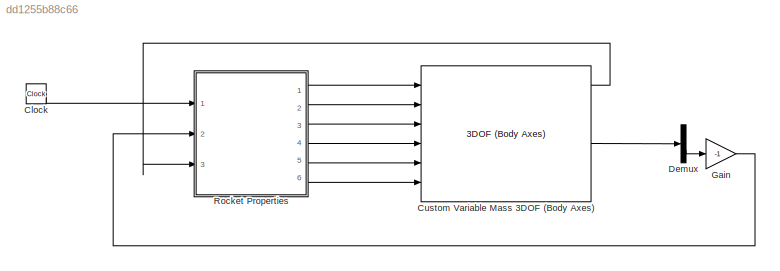
MODEL slx_dd1255b88c66
KIND model
CONFIG AbsTol = auto
CONFIG EnableMultiTasking = off
CONFIG FixedStep = auto
CONFIG MaxStep = auto
CONFIG MinStep = auto
CONFIG RelTol = 1e-3
CONFIG SampleTimeConstraint = Unconstrained
CONFIG SolverName = VariableStepAuto
CONFIG StartTime = 0.0
CONFIG StopTime = 10.0
BLOCK [Clock] Clock
BLOCK [Reference] Custom Variable Mass 3DOF (Body Axes)  REF=shared3dof/3DOF (Body Axes)
  Ports = [6, 6]
  SourceBlock = shared3dof/3DOF (Body Axes)
  SourceProductBaseCode = AE,PW,MT,UV,VE,VP
  SourceType = 3DOF EoM
BLOCK [Demux] Demux
  Outputs = 2
  Ports = [1, 2]
BLOCK [Gain] Gain
  Gain = -1
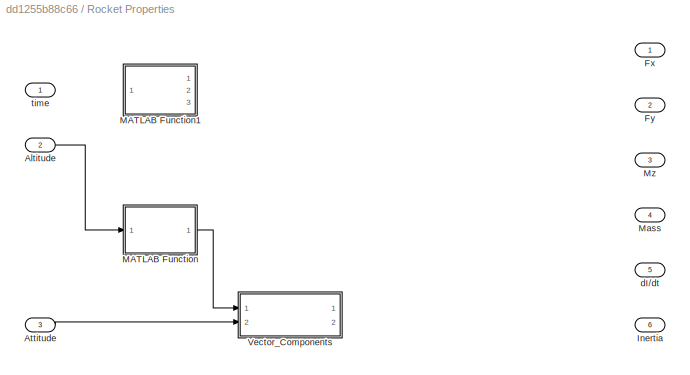
BLOCK [SubSystem] Rocket Properties
  Ports = [3, 6]
  RequestExecContextInheritance = off
BLOCK [Inport] Rocket Properties/Altitude
  Port = 2
BLOCK [Inport] Rocket Properties/Attitude
  Port = 3
BLOCK [Outport] Rocket Properties/Fx
BLOCK [Outport] Rocket Properties/Fy
  Port = 2
BLOCK [Outport] Rocket Properties/Inertia
  Port = 6
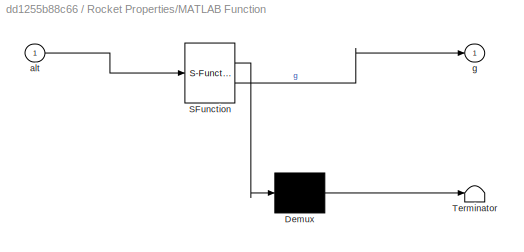
BLOCK [SubSystem] Rocket Properties/MATLAB Function
  ErrorFcn = Stateflow.Translate.translate
  PermitHierarchicalResolution = ExplicitOnly
  Ports = [1, 1]
  RequestExecContextInheritance = off
  SFBlockType = MATLAB Function
  TreatAsAtomicUnit = on
BLOCK [Demux] Rocket Properties/MATLAB Function/ Demux 
  Outputs = 1
  Ports = [1, 1]
BLOCK [S-Function] Rocket Properties/MATLAB Function/ SFunction 
  EnableBusSupport = off
  FunctionName = sf_sfun
  PortCounts = [1 2]
  Ports = [1, 2]
  SFcnIsStateOwnerBlock = off
  SFunctionDeploymentMode = off
  Tag = Stateflow S-Function 2
BLOCK [Terminator] Rocket Properties/MATLAB Function/ Terminator 
BLOCK [Inport] Rocket Properties/MATLAB Function/alt
BLOCK [Outport] Rocket Properties/MATLAB Function/g
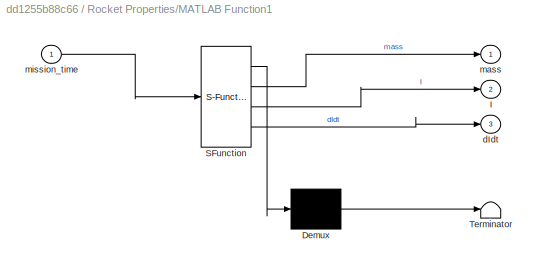
BLOCK [SubSystem] Rocket Properties/MATLAB Function1
  ErrorFcn = Stateflow.Translate.translate
  PermitHierarchicalResolution = ExplicitOnly
  Ports = [1, 3]
  RequestExecContextInheritance = off
  SFBlockType = MATLAB Function
  TreatAsAtomicUnit = on
BLOCK [Demux] Rocket Properties/MATLAB Function1/ Demux 
  Outputs = 1
  Ports = [1, 1]
BLOCK [S-Function] Rocket Properties/MATLAB Function1/ SFunction 
  EnableBusSupport = off
  FunctionName = sf_sfun
  PortCounts = [1 4]
  Ports = [1, 4]
  SFcnIsStateOwnerBlock = off
  SFunctionDeploymentMode = off
  Tag = Stateflow S-Function 1
BLOCK [Terminator] Rocket Properties/MATLAB Function1/ Terminator 
BLOCK [Outport] Rocket Properties/MATLAB Function1/I
  Port = 2
BLOCK [Outport] Rocket Properties/MATLAB Function1/dIdt
  Port = 3
BLOCK [Outport] Rocket Properties/MATLAB Function1/mass
BLOCK [Inport] Rocket Properties/MATLAB Function1/mission_time
BLOCK [Outport] Rocket Properties/Mass
  Port = 4
BLOCK [Outport] Rocket Properties/Mz
  Port = 3
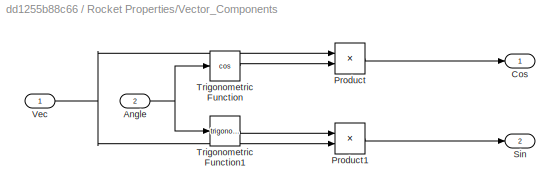
BLOCK [SubSystem] Rocket Properties/Vector_Components
  Ports = [2, 2]
  RequestExecContextInheritance = off
BLOCK [Inport] Rocket Properties/Vector_Components/Angle
  Port = 2
BLOCK [Outport] Rocket Properties/Vector_Components/Cos
BLOCK [Product] Rocket Properties/Vector_Components/Product
  Ports = [2, 1]
BLOCK [Product] Rocket Properties/Vector_Components/Product1
  Ports = [2, 1]
BLOCK [Outport] Rocket Properties/Vector_Components/Sin
  Port = 2
BLOCK [Trigonometry] Rocket Properties/Vector_Components/Trigonometric Function
  Operator = cos
  Ports = [1, 1]
BLOCK [Trigonometry] Rocket Properties/Vector_Components/Trigonometric Function1
  Ports = [1, 1]
BLOCK [Inport] Rocket Properties/Vector_Components/Vec
BLOCK [Outport] Rocket Properties/dI//dt
  Port = 5
BLOCK [Inport] Rocket Properties/time
LINE Clock:1 -> Rocket Properties:1
LINE Custom Variable Mass 3DOF (Body Axes):1 -> Rocket Properties:3
LINE Custom Variable Mass 3DOF (Body Axes):4 -> Demux:1
LINE Demux:2 -> Gain:1
LINE Gain:1 -> Rocket Properties:2
LINE Rocket Properties/Altitude:1 -> Rocket Properties/MATLAB Function:1
LINE Rocket Properties/Attitude:1 -> Rocket Properties/Vector_Components:2
LINE Rocket Properties/MATLAB Function:1 -> Rocket Properties/Vector_Components:1
NET Rocket Properties/Vector_Components/Angle:1 -> Rocket Properties/Vector_Components/Trigonometric Function1:1, Rocket Properties/Vector_Components/Trigonometric Function:1
LINE Rocket Properties/Vector_Components/Product1:1 -> Rocket Properties/Vector_Components/Sin:1
LINE Rocket Properties/Vector_Components/Product:1 -> Rocket Properties/Vector_Components/Cos:1
LINE Rocket Properties/Vector_Components/Trigonometric Function1:1 -> Rocket Properties/Vector_Components/Product1:1
LINE Rocket Properties/Vector_Components/Trigonometric Function:1 -> Rocket Properties/Vector_Components/Product:2
NET Rocket Properties/Vector_Components/Vec:1 -> Rocket Properties/Vector_Components/Product1:2, Rocket Properties/Vector_Components/Product:1
LINE Rocket Properties:1 -> Custom Variable Mass 3DOF (Body Axes):1
LINE Rocket Properties:2 -> Custom Variable Mass 3DOF (Body Axes):2
LINE Rocket Properties:3 -> Custom Variable Mass 3DOF (Body Axes):3
LINE Rocket Properties:4 -> Custom Variable Mass 3DOF (Body Axes):4
LINE Rocket Properties:5 -> Custom Variable Mass 3DOF (Body Axes):5
LINE Rocket Properties:6 -> Custom Variable Mass 3DOF (Body Axes):6
note: NET lines group one-source signal fan-out (src -> all destinations, sorted); 1:1 wires keep LINE
CHART Rocket Properties/MATLAB Function states=1 transitions=1
  STATE_LABEL 'eML_blk_kernel()'
  STATE_LABEL 'SCRIPT:\nfunction g = g_calc(alt)\n\nMu = 3.986004418e14;\nRe = 6.371e6;\n\nR = Re + alt;\n\ng = (Mu/(R^2));\n\nend\n'
CHART Rocket Properties/MATLAB Function1 states=1 transitions=1
  STATE_LABEL 'eML_blk_kernel()'
  STATE_LABEL 'SCRIPT:\nfunction [mass,I,dIdt] = rocket_prop_eval(mission_time)\n\nL = [14.52 1.95 1.83];\n\nm_dot = [69.2893    7.4443    0.5640];\n\nDiam = 0.83;\n\nthick = 0.001;\n\n\nif mission_time < tbb(1)\n        \n        m_dot_current = m_dot(1);\n        \n        mass = M0 - (m_dot(1)*mission_time);\n        \n        Length = sum(L);\n        \n    elseif (mission_time >= tbb(1)) && (mission_time < sum(tbb(1:2)))\n     ...<+444ch>'
CHART  states=0 transitions=0
CHART  states=0 transitions=0
